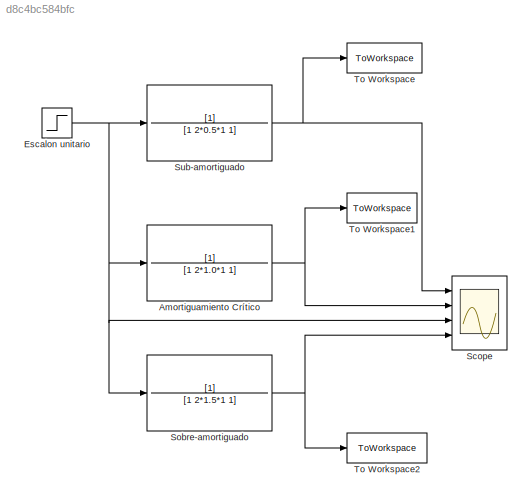
MODEL slx_d8c4bc584bfc
KIND model
CONFIG AbsTol = auto
CONFIG EnableMultiTasking = off
CONFIG FixedStep = auto
CONFIG MaxStep = auto
CONFIG MinStep = auto
CONFIG RelTol = 1e-3
CONFIG SampleTimeConstraint = Unconstrained
CONFIG Solver = VariableStepAuto
CONFIG SolverName = VariableStepAuto
CONFIG StartTime = 0.0
CONFIG StopTime = 20.0
BLOCK [TransferFcn]  Sobre-amortiguado
  Denominator = [1 2*1.5*1 1]
BLOCK [TransferFcn] Amortiguamiento Crítico
  Denominator = [1 2*1.0*1 1]
BLOCK [Step] Escalon unitario
  SampleTime = 0.01
BLOCK [Scope] Scope
  Floating = off
  NumInputPorts = 4
  Ports = [4]
  ScopeSpecificationString = Simulink.scopes.TimeScopeBlockCfg('CurrentConfiguration', extmgr.ConfigurationSet(extmgr.Configuration('Core','General UI',true),extmgr.Configuration('Core','Source UI',true),extmgr.Configuration('Sources','WiredSimulink',true),extmgr.Configuration('Visuals','Time Domain',true,'SerializedDisplays',{struct('MinYLimReal','-0.14538','MaxYLimReal','1.30841','YLabelReal','Signal Value','MinYLimMag','0....<+1477ch>
BLOCK [TransferFcn] Sub-amortiguado
  Denominator = [1 2*0.5*1 1]
BLOCK [ToWorkspace] To Workspace
  FixptAsFi = on
  MaxDataPoints = inf
  Ports = [1]
  SampleTime = -1
  Save2DSignal = 3-D array (concatenate along third dimension)
  VariableName = subAmortiguado
BLOCK [ToWorkspace] To Workspace1
  FixptAsFi = on
  MaxDataPoints = inf
  Ports = [1]
  SampleTime = -1
  Save2DSignal = 3-D array (concatenate along third dimension)
  VariableName = amortCritico
BLOCK [ToWorkspace] To Workspace2
  FixptAsFi = on
  MaxDataPoints = inf
  Ports = [1]
  SampleTime = -1
  Save2DSignal = 3-D array (concatenate along third dimension)
  VariableName = sobreAmortiguado
NET  Sobre-amortiguado:1 -> Scope:4, To Workspace2:1
NET Amortiguamiento Crítico:1 -> Scope:2, To Workspace1:1
NET Escalon unitario:1 ->  Sobre-amortiguado:1, Amortiguamiento Crítico:1, Scope:3, Sub-amortiguado:1
NET Sub-amortiguado:1 -> Scope:1, To Workspace:1
note: NET lines group one-source signal fan-out (src -> all destinations, sorted); 1:1 wires keep LINE
